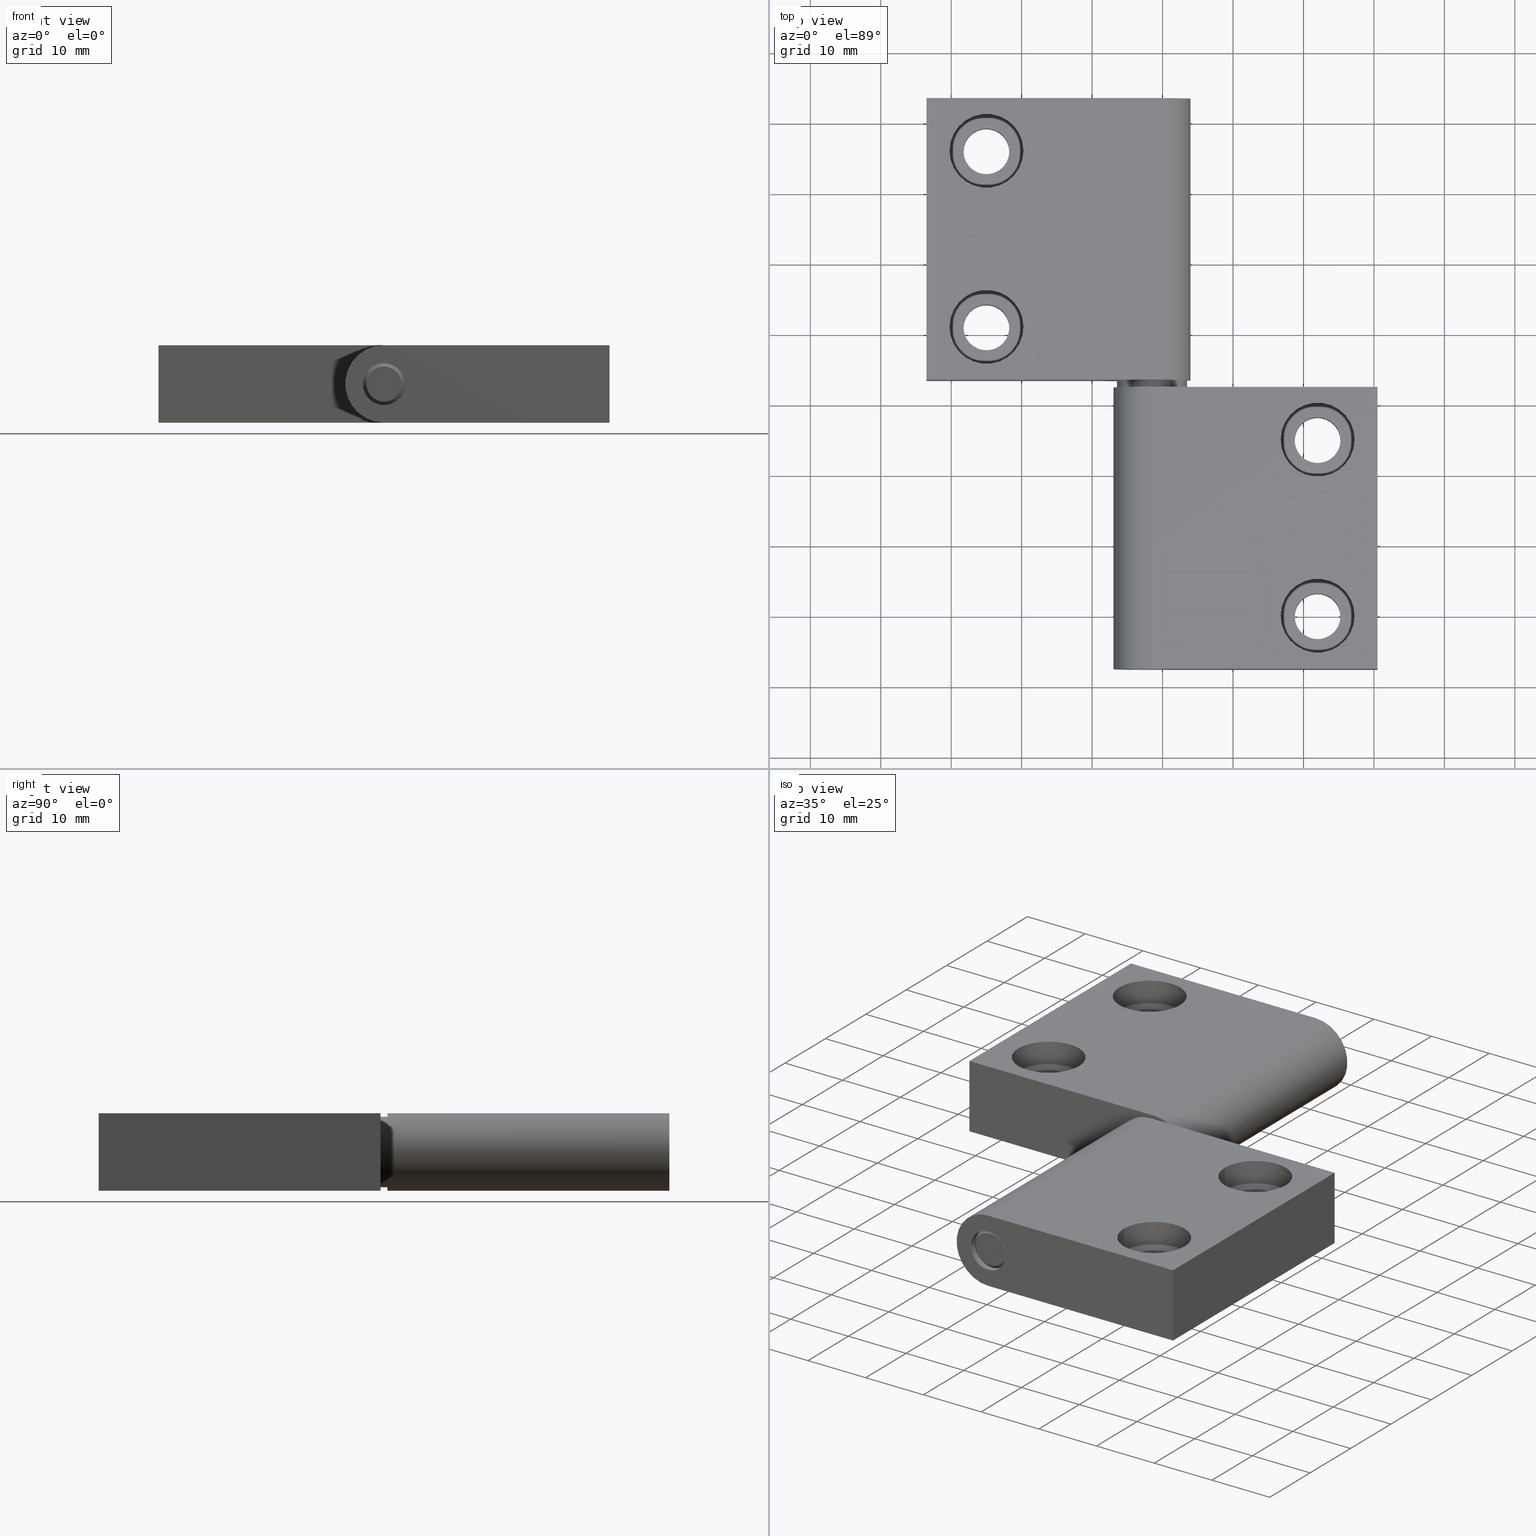
[diagram: canonical four-view strip — front | top / right | iso, engineering-drawing reading convention]
A machine part, canonical four-view strip (front | top / right | iso — engineering-drawing reading convention). The complete STEP part file that produces these views, byte-faithful:
ISO-10303-21;
HEADER;
/* Generated by software containing ST-Developer
 * from STEP Tools, Inc. (www.steptools.com) 
 */

FILE_DESCRIPTION(
/* description */ ('CERNIERA 60x80 C/P ALLUMINIO SERIE 45'),
/* implementation_level */ '2;1');

FILE_NAME(
/* name */ 'C:\\Users\\tecnico7\\Desktop\\CCRYY0000016.stp',
/* time_stamp */ '2022-07-07T15:16:16+02:00',
/* author */ ('tecnico7'),
/* organization */ (''),
/* preprocessor_version */ 'ST-DEVELOPER v18.1',
/* originating_system */ 'Autodesk Inventor 2022',
/* authorisation */ '');

FILE_SCHEMA (('AUTOMOTIVE_DESIGN { 1 0 10303 214 3 1 1 }'));
ENDSEC;

DATA;
#10=MECHANICAL_DESIGN_GEOMETRIC_PRESENTATION_REPRESENTATION('',(#35,#36,
#37),#719);
#11=ITEM_DEFINED_TRANSFORMATION($,$,#445,#490);
#12=ITEM_DEFINED_TRANSFORMATION($,$,#445,#491);
#13=ITEM_DEFINED_TRANSFORMATION($,$,#471,#492);
#14=ITEM_DEFINED_TRANSFORMATION($,$,#481,#493);
#15=(
REPRESENTATION_RELATIONSHIP($,$,#737,#736)
REPRESENTATION_RELATIONSHIP_WITH_TRANSFORMATION(#11)
SHAPE_REPRESENTATION_RELATIONSHIP()
);
#16=(
REPRESENTATION_RELATIONSHIP($,$,#737,#736)
REPRESENTATION_RELATIONSHIP_WITH_TRANSFORMATION(#12)
SHAPE_REPRESENTATION_RELATIONSHIP()
);
#17=(
REPRESENTATION_RELATIONSHIP($,$,#738,#736)
REPRESENTATION_RELATIONSHIP_WITH_TRANSFORMATION(#13)
SHAPE_REPRESENTATION_RELATIONSHIP()
);
#18=(
REPRESENTATION_RELATIONSHIP($,$,#739,#736)
REPRESENTATION_RELATIONSHIP_WITH_TRANSFORMATION(#14)
SHAPE_REPRESENTATION_RELATIONSHIP()
);
#19=CONTEXT_DEPENDENT_SHAPE_REPRESENTATION(#15,#732);
#20=CONTEXT_DEPENDENT_SHAPE_REPRESENTATION(#16,#733);
#21=CONTEXT_DEPENDENT_SHAPE_REPRESENTATION(#17,#734);
#22=CONTEXT_DEPENDENT_SHAPE_REPRESENTATION(#18,#735);
#23=NEXT_ASSEMBLY_USAGE_OCCURRENCE('440000012770.ipt:1',
'440000012770.ipt:1','440000012770.ipt:1',#741,#742,
'440000012770.ipt:1');
#24=NEXT_ASSEMBLY_USAGE_OCCURRENCE('440000012770.ipt:2',
'440000012770.ipt:2','440000012770.ipt:2',#741,#742,
'440000012770.ipt:2');
#25=NEXT_ASSEMBLY_USAGE_OCCURRENCE('F3DTM0000679.ipt:3',
'F3DTM0000679.ipt:3','F3DTM0000679.ipt:3',#741,#743,
'F3DTM0000679.ipt:3');
#26=NEXT_ASSEMBLY_USAGE_OCCURRENCE('440000000950.ipt:4',
'440000000950.ipt:4','440000000950.ipt:4',#741,#744,
'440000000950.ipt:4');
#27=CONICAL_SURFACE('',#472,2.75,0.785398163397448);
#28=CONICAL_SURFACE('',#478,2.75,0.78539816339745);
#29=SHAPE_REPRESENTATION_RELATIONSHIP('SRR','None',#737,#32);
#30=SHAPE_REPRESENTATION_RELATIONSHIP('SRR','None',#738,#33);
#31=SHAPE_REPRESENTATION_RELATIONSHIP('SRR','None',#739,#34);
#32=ADVANCED_BREP_SHAPE_REPRESENTATION('',(#38),#716);
#33=ADVANCED_BREP_SHAPE_REPRESENTATION('',(#39),#717);
#34=ADVANCED_BREP_SHAPE_REPRESENTATION('',(#40),#718);
#35=STYLED_ITEM('',(#393),#38);
#36=STYLED_ITEM('',(#394),#39);
#37=STYLED_ITEM('',(#395),#40);
#38=MANIFOLD_SOLID_BREP('None',#353);
#39=MANIFOLD_SOLID_BREP('Solido4',#354);
#40=MANIFOLD_SOLID_BREP('Solido1',#355);
#41=FACE_BOUND('',#87,.T.);
#42=FACE_BOUND('',#88,.T.);
#43=FACE_BOUND('',#90,.T.);
#44=FACE_BOUND('',#92,.T.);
#45=FACE_BOUND('',#93,.T.);
#46=FACE_BOUND('',#96,.T.);
#47=FACE_BOUND('',#99,.T.);
#48=FACE_BOUND('',#103,.T.);
#49=FACE_BOUND('',#113,.T.);
#50=FACE_BOUND('',#115,.T.);
#51=PLANE('',#452);
#52=PLANE('',#455);
#53=PLANE('',#456);
#54=PLANE('',#459);
#55=PLANE('',#460);
#56=PLANE('',#463);
#57=PLANE('',#468);
#58=PLANE('',#477);
#59=PLANE('',#480);
#60=PLANE('',#488);
#61=PLANE('',#489);
#62=FACE_OUTER_BOUND('',#84,.T.);
#63=FACE_OUTER_BOUND('',#85,.T.);
#64=FACE_OUTER_BOUND('',#86,.T.);
#65=FACE_OUTER_BOUND('',#89,.T.);
#66=FACE_OUTER_BOUND('',#91,.T.);
#67=FACE_OUTER_BOUND('',#94,.T.);
#68=FACE_OUTER_BOUND('',#95,.T.);
#69=FACE_OUTER_BOUND('',#97,.T.);
#70=FACE_OUTER_BOUND('',#98,.T.);
#71=FACE_OUTER_BOUND('',#100,.T.);
#72=FACE_OUTER_BOUND('',#101,.T.);
#73=FACE_OUTER_BOUND('',#102,.T.);
#74=FACE_OUTER_BOUND('',#104,.T.);
#75=FACE_OUTER_BOUND('',#105,.T.);
#76=FACE_OUTER_BOUND('',#106,.T.);
#77=FACE_OUTER_BOUND('',#107,.T.);
#78=FACE_OUTER_BOUND('',#108,.T.);
#79=FACE_OUTER_BOUND('',#109,.T.);
#80=FACE_OUTER_BOUND('',#110,.T.);
#81=FACE_OUTER_BOUND('',#111,.T.);
#82=FACE_OUTER_BOUND('',#112,.T.);
#83=FACE_OUTER_BOUND('',#114,.T.);
#84=EDGE_LOOP('',(#242,#243,#244,#245));
#85=EDGE_LOOP('',(#246,#247,#248,#249));
#86=EDGE_LOOP('',(#250,#251,#252,#253));
#87=EDGE_LOOP('',(#254));
#88=EDGE_LOOP('',(#255));
#89=EDGE_LOOP('',(#256,#257,#258,#259));
#90=EDGE_LOOP('',(#260));
#91=EDGE_LOOP('',(#261,#262,#263,#264));
#92=EDGE_LOOP('',(#265));
#93=EDGE_LOOP('',(#266));
#94=EDGE_LOOP('',(#267,#268,#269,#270));
#95=EDGE_LOOP('',(#271,#272,#273,#274));
#96=EDGE_LOOP('',(#275));
#97=EDGE_LOOP('',(#276,#277,#278,#279));
#98=EDGE_LOOP('',(#280));
#99=EDGE_LOOP('',(#281));
#100=EDGE_LOOP('',(#282,#283,#284,#285));
#101=EDGE_LOOP('',(#286,#287,#288,#289));
#102=EDGE_LOOP('',(#290));
#103=EDGE_LOOP('',(#291));
#104=EDGE_LOOP('',(#292,#293,#294,#295));
#105=EDGE_LOOP('',(#296,#297,#298,#299));
#106=EDGE_LOOP('',(#300,#301,#302,#303));
#107=EDGE_LOOP('',(#304));
#108=EDGE_LOOP('',(#305,#306,#307,#308));
#109=EDGE_LOOP('',(#309));
#110=EDGE_LOOP('',(#310,#311,#312,#313));
#111=EDGE_LOOP('',(#314,#315,#316,#317));
#112=EDGE_LOOP('',(#318));
#113=EDGE_LOOP('',(#319));
#114=EDGE_LOOP('',(#320));
#115=EDGE_LOOP('',(#321));
#116=LINE('',#620,#136);
#117=LINE('',#627,#137);
#118=LINE('',#630,#138);
#119=LINE('',#633,#139);
#120=LINE('',#635,#140);
#121=LINE('',#636,#141);
#122=LINE('',#643,#142);
#123=LINE('',#644,#143);
#124=LINE('',#647,#144);
#125=LINE('',#648,#145);
#126=LINE('',#654,#146);
#127=LINE('',#658,#147);
#128=LINE('',#664,#148);
#129=LINE('',#667,#149);
#130=LINE('',#673,#150);
#131=LINE('',#679,#151);
#132=LINE('',#684,#152);
#133=LINE('',#689,#153);
#134=LINE('',#696,#154);
#135=LINE('',#702,#155);
#136=VECTOR('',#502,3.);
#137=VECTOR('',#509,10.);
#138=VECTOR('',#512,10.);
#139=VECTOR('',#515,10.);
#140=VECTOR('',#516,10.);
#141=VECTOR('',#517,10.);
#142=VECTOR('',#524,10.);
#143=VECTOR('',#525,11.9999759999521);
#144=VECTOR('',#528,10.);
#145=VECTOR('',#529,10.);
#146=VECTOR('',#536,11.9999759999521);
#147=VECTOR('',#541,3.25);
#148=VECTOR('',#550,5.24998949997894);
#149=VECTOR('',#553,3.25);
#150=VECTOR('',#562,5.24998949997894);
#151=VECTOR('',#569,2.75);
#152=VECTOR('',#576,3.);
#153=VECTOR('',#583,2.75);
#154=VECTOR('',#592,2.5);
#155=VECTOR('',#599,5.);
#156=CIRCLE('',#447,3.);
#157=CIRCLE('',#448,3.);
#158=CIRCLE('',#450,5.49998799997604);
#159=CIRCLE('',#451,5.49998799997604);
#160=CIRCLE('',#453,5.24998949997894);
#161=CIRCLE('',#454,5.24998949997894);
#162=CIRCLE('',#457,3.25);
#163=CIRCLE('',#458,3.25);
#164=CIRCLE('',#462,3.25);
#165=CIRCLE('',#464,5.24998949997894);
#166=CIRCLE('',#467,3.25);
#167=CIRCLE('',#469,5.24998949997894);
#168=CIRCLE('',#473,2.5);
#169=CIRCLE('',#474,3.);
#170=CIRCLE('',#476,3.);
#171=CIRCLE('',#479,2.5);
#172=CIRCLE('',#483,2.5);
#173=CIRCLE('',#484,2.5);
#174=CIRCLE('',#486,5.);
#175=CIRCLE('',#487,5.);
#176=VERTEX_POINT('',#617);
#177=VERTEX_POINT('',#619);
#178=VERTEX_POINT('',#623);
#179=VERTEX_POINT('',#624);
#180=VERTEX_POINT('',#626);
#181=VERTEX_POINT('',#628);
#182=VERTEX_POINT('',#632);
#183=VERTEX_POINT('',#634);
#184=VERTEX_POINT('',#637);
#185=VERTEX_POINT('',#639);
#186=VERTEX_POINT('',#642);
#187=VERTEX_POINT('',#646);
#188=VERTEX_POINT('',#649);
#189=VERTEX_POINT('',#651);
#190=VERTEX_POINT('',#657);
#191=VERTEX_POINT('',#661);
#192=VERTEX_POINT('',#666);
#193=VERTEX_POINT('',#670);
#194=VERTEX_POINT('',#676);
#195=VERTEX_POINT('',#678);
#196=VERTEX_POINT('',#682);
#197=VERTEX_POINT('',#687);
#198=VERTEX_POINT('',#693);
#199=VERTEX_POINT('',#695);
#200=VERTEX_POINT('',#699);
#201=VERTEX_POINT('',#701);
#202=EDGE_CURVE('',#176,#176,#156,.T.);
#203=EDGE_CURVE('',#176,#177,#116,.T.);
#204=EDGE_CURVE('',#177,#177,#157,.T.);
#205=EDGE_CURVE('',#178,#179,#158,.T.);
#206=EDGE_CURVE('',#180,#179,#117,.T.);
#207=EDGE_CURVE('',#181,#180,#159,.T.);
#208=EDGE_CURVE('',#181,#178,#118,.T.);
#209=EDGE_CURVE('',#182,#181,#119,.T.);
#210=EDGE_CURVE('',#183,#182,#120,.T.);
#211=EDGE_CURVE('',#178,#183,#121,.T.);
#212=EDGE_CURVE('',#184,#184,#160,.T.);
#213=EDGE_CURVE('',#185,#185,#161,.T.);
#214=EDGE_CURVE('',#180,#186,#122,.T.);
#215=EDGE_CURVE('',#182,#186,#123,.T.);
#216=EDGE_CURVE('',#179,#187,#124,.T.);
#217=EDGE_CURVE('',#186,#187,#125,.T.);
#218=EDGE_CURVE('',#188,#188,#162,.T.);
#219=EDGE_CURVE('',#189,#189,#163,.T.);
#220=EDGE_CURVE('',#183,#187,#126,.T.);
#221=EDGE_CURVE('',#189,#190,#127,.T.);
#222=EDGE_CURVE('',#190,#190,#164,.T.);
#223=EDGE_CURVE('',#191,#191,#165,.T.);
#224=EDGE_CURVE('',#191,#184,#128,.T.);
#225=EDGE_CURVE('',#188,#192,#129,.T.);
#226=EDGE_CURVE('',#192,#192,#166,.T.);
#227=EDGE_CURVE('',#193,#193,#167,.T.);
#228=EDGE_CURVE('',#193,#185,#130,.T.);
#229=EDGE_CURVE('',#194,#194,#168,.T.);
#230=EDGE_CURVE('',#194,#195,#131,.T.);
#231=EDGE_CURVE('',#195,#195,#169,.T.);
#232=EDGE_CURVE('',#196,#196,#170,.T.);
#233=EDGE_CURVE('',#196,#195,#132,.T.);
#234=EDGE_CURVE('',#197,#197,#171,.T.);
#235=EDGE_CURVE('',#197,#196,#133,.T.);
#236=EDGE_CURVE('',#198,#198,#172,.T.);
#237=EDGE_CURVE('',#198,#199,#134,.T.);
#238=EDGE_CURVE('',#199,#199,#173,.T.);
#239=EDGE_CURVE('',#200,#200,#174,.T.);
#240=EDGE_CURVE('',#200,#201,#135,.T.);
#241=EDGE_CURVE('',#201,#201,#175,.T.);
#242=ORIENTED_EDGE('',*,*,#202,.F.);
#243=ORIENTED_EDGE('',*,*,#203,.T.);
#244=ORIENTED_EDGE('',*,*,#204,.F.);
#245=ORIENTED_EDGE('',*,*,#203,.F.);
#246=ORIENTED_EDGE('',*,*,#205,.T.);
#247=ORIENTED_EDGE('',*,*,#206,.F.);
#248=ORIENTED_EDGE('',*,*,#207,.F.);
#249=ORIENTED_EDGE('',*,*,#208,.T.);
#250=ORIENTED_EDGE('',*,*,#209,.F.);
#251=ORIENTED_EDGE('',*,*,#210,.F.);
#252=ORIENTED_EDGE('',*,*,#211,.F.);
#253=ORIENTED_EDGE('',*,*,#208,.F.);
#254=ORIENTED_EDGE('',*,*,#212,.F.);
#255=ORIENTED_EDGE('',*,*,#213,.F.);
#256=ORIENTED_EDGE('',*,*,#214,.T.);
#257=ORIENTED_EDGE('',*,*,#215,.F.);
#258=ORIENTED_EDGE('',*,*,#209,.T.);
#259=ORIENTED_EDGE('',*,*,#207,.T.);
#260=ORIENTED_EDGE('',*,*,#202,.T.);
#261=ORIENTED_EDGE('',*,*,#216,.T.);
#262=ORIENTED_EDGE('',*,*,#217,.F.);
#263=ORIENTED_EDGE('',*,*,#214,.F.);
#264=ORIENTED_EDGE('',*,*,#206,.T.);
#265=ORIENTED_EDGE('',*,*,#218,.F.);
#266=ORIENTED_EDGE('',*,*,#219,.F.);
#267=ORIENTED_EDGE('',*,*,#217,.T.);
#268=ORIENTED_EDGE('',*,*,#220,.F.);
#269=ORIENTED_EDGE('',*,*,#210,.T.);
#270=ORIENTED_EDGE('',*,*,#215,.T.);
#271=ORIENTED_EDGE('',*,*,#211,.T.);
#272=ORIENTED_EDGE('',*,*,#220,.T.);
#273=ORIENTED_EDGE('',*,*,#216,.F.);
#274=ORIENTED_EDGE('',*,*,#205,.F.);
#275=ORIENTED_EDGE('',*,*,#204,.T.);
#276=ORIENTED_EDGE('',*,*,#219,.T.);
#277=ORIENTED_EDGE('',*,*,#221,.T.);
#278=ORIENTED_EDGE('',*,*,#222,.T.);
#279=ORIENTED_EDGE('',*,*,#221,.F.);
#280=ORIENTED_EDGE('',*,*,#223,.T.);
#281=ORIENTED_EDGE('',*,*,#222,.F.);
#282=ORIENTED_EDGE('',*,*,#223,.F.);
#283=ORIENTED_EDGE('',*,*,#224,.T.);
#284=ORIENTED_EDGE('',*,*,#212,.T.);
#285=ORIENTED_EDGE('',*,*,#224,.F.);
#286=ORIENTED_EDGE('',*,*,#218,.T.);
#287=ORIENTED_EDGE('',*,*,#225,.T.);
#288=ORIENTED_EDGE('',*,*,#226,.T.);
#289=ORIENTED_EDGE('',*,*,#225,.F.);
#290=ORIENTED_EDGE('',*,*,#227,.T.);
#291=ORIENTED_EDGE('',*,*,#226,.F.);
#292=ORIENTED_EDGE('',*,*,#227,.F.);
#293=ORIENTED_EDGE('',*,*,#228,.T.);
#294=ORIENTED_EDGE('',*,*,#213,.T.);
#295=ORIENTED_EDGE('',*,*,#228,.F.);
#296=ORIENTED_EDGE('',*,*,#229,.T.);
#297=ORIENTED_EDGE('',*,*,#230,.T.);
#298=ORIENTED_EDGE('',*,*,#231,.T.);
#299=ORIENTED_EDGE('',*,*,#230,.F.);
#300=ORIENTED_EDGE('',*,*,#232,.F.);
#301=ORIENTED_EDGE('',*,*,#233,.T.);
#302=ORIENTED_EDGE('',*,*,#231,.F.);
#303=ORIENTED_EDGE('',*,*,#233,.F.);
#304=ORIENTED_EDGE('',*,*,#229,.F.);
#305=ORIENTED_EDGE('',*,*,#234,.T.);
#306=ORIENTED_EDGE('',*,*,#235,.T.);
#307=ORIENTED_EDGE('',*,*,#232,.T.);
#308=ORIENTED_EDGE('',*,*,#235,.F.);
#309=ORIENTED_EDGE('',*,*,#234,.F.);
#310=ORIENTED_EDGE('',*,*,#236,.T.);
#311=ORIENTED_EDGE('',*,*,#237,.T.);
#312=ORIENTED_EDGE('',*,*,#238,.F.);
#313=ORIENTED_EDGE('',*,*,#237,.F.);
#314=ORIENTED_EDGE('',*,*,#239,.F.);
#315=ORIENTED_EDGE('',*,*,#240,.T.);
#316=ORIENTED_EDGE('',*,*,#241,.F.);
#317=ORIENTED_EDGE('',*,*,#240,.F.);
#318=ORIENTED_EDGE('',*,*,#241,.T.);
#319=ORIENTED_EDGE('',*,*,#238,.T.);
#320=ORIENTED_EDGE('',*,*,#239,.T.);
#321=ORIENTED_EDGE('',*,*,#236,.F.);
#322=CYLINDRICAL_SURFACE('',#446,3.);
#323=CYLINDRICAL_SURFACE('',#449,5.49998799997604);
#324=CYLINDRICAL_SURFACE('',#461,3.25);
#325=CYLINDRICAL_SURFACE('',#465,5.24998949997894);
#326=CYLINDRICAL_SURFACE('',#466,3.25);
#327=CYLINDRICAL_SURFACE('',#470,5.24998949997894);
#328=CYLINDRICAL_SURFACE('',#475,3.);
#329=CYLINDRICAL_SURFACE('',#482,2.5);
#330=CYLINDRICAL_SURFACE('',#485,5.);
#331=ADVANCED_FACE('',(#62),#322,.F.);
#332=ADVANCED_FACE('',(#63),#323,.T.);
#333=ADVANCED_FACE('',(#64,#41,#42),#51,.T.);
#334=ADVANCED_FACE('',(#65,#43),#52,.F.);
#335=ADVANCED_FACE('',(#66,#44,#45),#53,.F.);
#336=ADVANCED_FACE('',(#67),#54,.F.);
#337=ADVANCED_FACE('',(#68,#46),#55,.T.);
#338=ADVANCED_FACE('',(#69),#324,.F.);
#339=ADVANCED_FACE('',(#70,#47),#56,.F.);
#340=ADVANCED_FACE('',(#71),#325,.F.);
#341=ADVANCED_FACE('',(#72),#326,.F.);
#342=ADVANCED_FACE('',(#73,#48),#57,.F.);
#343=ADVANCED_FACE('',(#74),#327,.F.);
#344=ADVANCED_FACE('',(#75),#27,.T.);
#345=ADVANCED_FACE('',(#76),#328,.T.);
#346=ADVANCED_FACE('',(#77),#58,.F.);
#347=ADVANCED_FACE('',(#78),#28,.T.);
#348=ADVANCED_FACE('',(#79),#59,.T.);
#349=ADVANCED_FACE('',(#80),#329,.F.);
#350=ADVANCED_FACE('',(#81),#330,.T.);
#351=ADVANCED_FACE('',(#82,#49),#60,.F.);
#352=ADVANCED_FACE('',(#83,#50),#61,.T.);
#353=CLOSED_SHELL('',(#331,#332,#333,#334,#335,#336,#337,#338,#339,#340,
#341,#342,#343));
#354=CLOSED_SHELL('',(#344,#345,#346,#347,#348));
#355=CLOSED_SHELL('',(#349,#350,#351,#352));
#356=DERIVED_UNIT_ELEMENT(#363,1.);
#357=DERIVED_UNIT_ELEMENT(#721,-3.);
#358=DERIVED_UNIT_ELEMENT(#363,1.);
#359=DERIVED_UNIT_ELEMENT(#721,-3.);
#360=DERIVED_UNIT_ELEMENT(#363,1.);
#361=DERIVED_UNIT_ELEMENT(#721,-3.);
#362=DIMENSIONAL_EXPONENTS(1.,0.,0.,0.,0.,0.,0.);
#363=(
CONVERSION_BASED_UNIT('gram',#365)
MASS_UNIT()
NAMED_UNIT(#362)
);
#364=(
MASS_UNIT()
NAMED_UNIT(*)
SI_UNIT(.KILO.,.GRAM.)
);
#365=MASS_MEASURE_WITH_UNIT(MASS_MEASURE(0.001),#364);
#366=DERIVED_UNIT((#356,#357));
#367=DERIVED_UNIT((#358,#359));
#368=DERIVED_UNIT((#360,#361));
#369=MEASURE_REPRESENTATION_ITEM('density measure',
POSITIVE_RATIO_MEASURE(2.7),#366);
#370=MEASURE_REPRESENTATION_ITEM('density measure',
POSITIVE_RATIO_MEASURE(8.08),#367);
#371=MEASURE_REPRESENTATION_ITEM('density measure',
POSITIVE_RATIO_MEASURE(7.85),#368);
#372=PROPERTY_DEFINITION_REPRESENTATION(#387,#378);
#373=PROPERTY_DEFINITION_REPRESENTATION(#388,#379);
#374=PROPERTY_DEFINITION_REPRESENTATION(#389,#380);
#375=PROPERTY_DEFINITION_REPRESENTATION(#390,#381);
#376=PROPERTY_DEFINITION_REPRESENTATION(#391,#382);
#377=PROPERTY_DEFINITION_REPRESENTATION(#392,#383);
#378=REPRESENTATION('material name',(#384),#716);
#379=REPRESENTATION('density',(#369),#716);
#380=REPRESENTATION('material name',(#385),#717);
#381=REPRESENTATION('density',(#370),#717);
#382=REPRESENTATION('material name',(#386),#718);
#383=REPRESENTATION('density',(#371),#718);
#384=DESCRIPTIVE_REPRESENTATION_ITEM('Alluminio 6060','Alluminio 6060');
#385=DESCRIPTIVE_REPRESENTATION_ITEM('Acciaio Inox AISI304',
'Acciaio Inox AISI304');
#386=DESCRIPTIVE_REPRESENTATION_ITEM('Acciaio generico (Ferro)',
'Acciaio generico (Ferro)');
#387=PROPERTY_DEFINITION('material property','material name',#742);
#388=PROPERTY_DEFINITION('material property','density of part',#742);
#389=PROPERTY_DEFINITION('material property','material name',#743);
#390=PROPERTY_DEFINITION('material property','density of part',#743);
#391=PROPERTY_DEFINITION('material property','material name',#744);
#392=PROPERTY_DEFINITION('material property','density of part',#744);
#393=PRESENTATION_STYLE_ASSIGNMENT((#396));
#394=PRESENTATION_STYLE_ASSIGNMENT((#397));
#395=PRESENTATION_STYLE_ASSIGNMENT((#398));
#396=SURFACE_STYLE_USAGE(.BOTH.,#405);
#397=SURFACE_STYLE_USAGE(.BOTH.,#406);
#398=SURFACE_STYLE_USAGE(.BOTH.,#407);
#399=SURFACE_STYLE_RENDERING_WITH_PROPERTIES($,#417,(#402));
#400=SURFACE_STYLE_RENDERING_WITH_PROPERTIES($,#418,(#403));
#401=SURFACE_STYLE_RENDERING_WITH_PROPERTIES($,#419,(#404));
#402=SURFACE_STYLE_TRANSPARENT(0.);
#403=SURFACE_STYLE_TRANSPARENT(0.);
#404=SURFACE_STYLE_TRANSPARENT(0.);
#405=SURFACE_SIDE_STYLE('',(#408,#399));
#406=SURFACE_SIDE_STYLE('',(#409,#400));
#407=SURFACE_SIDE_STYLE('',(#410,#401));
#408=SURFACE_STYLE_FILL_AREA(#411);
#409=SURFACE_STYLE_FILL_AREA(#412);
#410=SURFACE_STYLE_FILL_AREA(#413);
#411=FILL_AREA_STYLE('',(#414));
#412=FILL_AREA_STYLE('',(#415));
#413=FILL_AREA_STYLE('',(#416));
#414=FILL_AREA_STYLE_COLOUR('',#417);
#415=FILL_AREA_STYLE_COLOUR('',#418);
#416=FILL_AREA_STYLE_COLOUR('',#419);
#417=COLOUR_RGB('',0.956862745098039,0.956862745098039,0.956862745098039);
#418=COLOUR_RGB('',0.745098039215686,0.737254901960784,0.729411764705882);
#419=COLOUR_RGB('',0.63921568627451,0.63921568627451,0.662745098039216);
#420=DATE_TIME_ROLE('creation_date');
#421=DATE_TIME_ROLE('creation_date');
#422=DATE_TIME_ROLE('creation_date');
#423=DATE_TIME_ROLE('creation_date');
#424=APPLIED_DATE_AND_TIME_ASSIGNMENT(#428,#420,(#741));
#425=APPLIED_DATE_AND_TIME_ASSIGNMENT(#429,#421,(#742));
#426=APPLIED_DATE_AND_TIME_ASSIGNMENT(#430,#422,(#743));
#427=APPLIED_DATE_AND_TIME_ASSIGNMENT(#431,#423,(#744));
#428=DATE_AND_TIME(#432,#436);
#429=DATE_AND_TIME(#433,#437);
#430=DATE_AND_TIME(#434,#438);
#431=DATE_AND_TIME(#435,#439);
#432=CALENDAR_DATE(2013,13,3);
#433=CALENDAR_DATE(2013,13,3);
#434=CALENDAR_DATE(2013,13,3);
#435=CALENDAR_DATE(2016,29,3);
#436=LOCAL_TIME(0,0,0.,#440);
#437=LOCAL_TIME(0,0,0.,#441);
#438=LOCAL_TIME(0,0,0.,#442);
#439=LOCAL_TIME(0,0,0.,#443);
#440=COORDINATED_UNIVERSAL_TIME_OFFSET(0,0,.BEHIND.);
#441=COORDINATED_UNIVERSAL_TIME_OFFSET(0,0,.BEHIND.);
#442=COORDINATED_UNIVERSAL_TIME_OFFSET(0,0,.BEHIND.);
#443=COORDINATED_UNIVERSAL_TIME_OFFSET(0,0,.BEHIND.);
#444=AXIS2_PLACEMENT_3D('placement',#614,#494,#495);
#445=AXIS2_PLACEMENT_3D('placement',#615,#496,#497);
#446=AXIS2_PLACEMENT_3D('',#616,#498,#499);
#447=AXIS2_PLACEMENT_3D('',#618,#500,#501);
#448=AXIS2_PLACEMENT_3D('',#621,#503,#504);
#449=AXIS2_PLACEMENT_3D('',#622,#505,#506);
#450=AXIS2_PLACEMENT_3D('',#625,#507,#508);
#451=AXIS2_PLACEMENT_3D('',#629,#510,#511);
#452=AXIS2_PLACEMENT_3D('',#631,#513,#514);
#453=AXIS2_PLACEMENT_3D('',#638,#518,#519);
#454=AXIS2_PLACEMENT_3D('',#640,#520,#521);
#455=AXIS2_PLACEMENT_3D('',#641,#522,#523);
#456=AXIS2_PLACEMENT_3D('',#645,#526,#527);
#457=AXIS2_PLACEMENT_3D('',#650,#530,#531);
#458=AXIS2_PLACEMENT_3D('',#652,#532,#533);
#459=AXIS2_PLACEMENT_3D('',#653,#534,#535);
#460=AXIS2_PLACEMENT_3D('',#655,#537,#538);
#461=AXIS2_PLACEMENT_3D('',#656,#539,#540);
#462=AXIS2_PLACEMENT_3D('',#659,#542,#543);
#463=AXIS2_PLACEMENT_3D('',#660,#544,#545);
#464=AXIS2_PLACEMENT_3D('',#662,#546,#547);
#465=AXIS2_PLACEMENT_3D('',#663,#548,#549);
#466=AXIS2_PLACEMENT_3D('',#665,#551,#552);
#467=AXIS2_PLACEMENT_3D('',#668,#554,#555);
#468=AXIS2_PLACEMENT_3D('',#669,#556,#557);
#469=AXIS2_PLACEMENT_3D('',#671,#558,#559);
#470=AXIS2_PLACEMENT_3D('',#672,#560,#561);
#471=AXIS2_PLACEMENT_3D('placement',#674,#563,#564);
#472=AXIS2_PLACEMENT_3D('',#675,#565,#566);
#473=AXIS2_PLACEMENT_3D('',#677,#567,#568);
#474=AXIS2_PLACEMENT_3D('',#680,#570,#571);
#475=AXIS2_PLACEMENT_3D('',#681,#572,#573);
#476=AXIS2_PLACEMENT_3D('',#683,#574,#575);
#477=AXIS2_PLACEMENT_3D('',#685,#577,#578);
#478=AXIS2_PLACEMENT_3D('',#686,#579,#580);
#479=AXIS2_PLACEMENT_3D('',#688,#581,#582);
#480=AXIS2_PLACEMENT_3D('',#690,#584,#585);
#481=AXIS2_PLACEMENT_3D('placement',#691,#586,#587);
#482=AXIS2_PLACEMENT_3D('',#692,#588,#589);
#483=AXIS2_PLACEMENT_3D('',#694,#590,#591);
#484=AXIS2_PLACEMENT_3D('',#697,#593,#594);
#485=AXIS2_PLACEMENT_3D('',#698,#595,#596);
#486=AXIS2_PLACEMENT_3D('',#700,#597,#598);
#487=AXIS2_PLACEMENT_3D('',#703,#600,#601);
#488=AXIS2_PLACEMENT_3D('',#704,#602,#603);
#489=AXIS2_PLACEMENT_3D('',#705,#604,#605);
#490=AXIS2_PLACEMENT_3D('',#706,#606,#607);
#491=AXIS2_PLACEMENT_3D('',#707,#608,#609);
#492=AXIS2_PLACEMENT_3D('',#708,#610,#611);
#493=AXIS2_PLACEMENT_3D('',#709,#612,#613);
#494=DIRECTION('axis',(0.,0.,1.));
#495=DIRECTION('refdir',(1.,0.,0.));
#496=DIRECTION('axis',(0.,0.,1.));
#497=DIRECTION('refdir',(1.,0.,0.));
#498=DIRECTION('center_axis',(0.,-1.,0.));
#499=DIRECTION('ref_axis',(1.,0.,0.));
#500=DIRECTION('center_axis',(0.,1.,0.));
#501=DIRECTION('ref_axis',(1.,0.,0.));
#502=DIRECTION('',(0.,1.,0.));
#503=DIRECTION('center_axis',(0.,-1.,0.));
#504=DIRECTION('ref_axis',(1.,0.,0.));
#505=DIRECTION('center_axis',(0.,1.,0.));
#506=DIRECTION('ref_axis',(0.,0.,1.));
#507=DIRECTION('center_axis',(0.,-1.,0.));
#508=DIRECTION('ref_axis',(0.,0.,1.));
#509=DIRECTION('',(0.,1.,0.));
#510=DIRECTION('center_axis',(0.,-1.,0.));
#511=DIRECTION('ref_axis',(0.,0.,1.));
#512=DIRECTION('',(0.,1.,0.));
#513=DIRECTION('center_axis',(0.,0.,1.));
#514=DIRECTION('ref_axis',(1.,0.,0.));
#515=DIRECTION('',(-1.,0.,0.));
#516=DIRECTION('',(0.,-1.,0.));
#517=DIRECTION('',(1.,0.,0.));
#518=DIRECTION('center_axis',(0.,0.,1.));
#519=DIRECTION('ref_axis',(1.,0.,0.));
#520=DIRECTION('center_axis',(0.,0.,1.));
#521=DIRECTION('ref_axis',(1.,0.,0.));
#522=DIRECTION('center_axis',(0.,1.,0.));
#523=DIRECTION('ref_axis',(0.,0.,1.));
#524=DIRECTION('',(1.,0.,0.));
#525=DIRECTION('',(0.,0.,-1.));
#526=DIRECTION('center_axis',(0.,0.,1.));
#527=DIRECTION('ref_axis',(1.,0.,0.));
#528=DIRECTION('',(1.,0.,0.));
#529=DIRECTION('',(0.,1.,0.));
#530=DIRECTION('center_axis',(0.,0.,-1.));
#531=DIRECTION('ref_axis',(1.,0.,0.));
#532=DIRECTION('center_axis',(0.,0.,-1.));
#533=DIRECTION('ref_axis',(1.,0.,0.));
#534=DIRECTION('center_axis',(-1.,0.,0.));
#535=DIRECTION('ref_axis',(0.,0.,1.));
#536=DIRECTION('',(0.,0.,-1.));
#537=DIRECTION('center_axis',(0.,1.,0.));
#538=DIRECTION('ref_axis',(0.,0.,1.));
#539=DIRECTION('center_axis',(0.,0.,1.));
#540=DIRECTION('ref_axis',(1.,0.,0.));
#541=DIRECTION('',(0.,0.,1.));
#542=DIRECTION('center_axis',(0.,0.,1.));
#543=DIRECTION('ref_axis',(1.,0.,0.));
#544=DIRECTION('center_axis',(0.,0.,-1.));
#545=DIRECTION('ref_axis',(-1.,0.,0.));
#546=DIRECTION('center_axis',(0.,0.,1.));
#547=DIRECTION('ref_axis',(1.,0.,0.));
#548=DIRECTION('center_axis',(0.,0.,1.));
#549=DIRECTION('ref_axis',(1.,0.,0.));
#550=DIRECTION('',(0.,0.,1.));
#551=DIRECTION('center_axis',(0.,0.,1.));
#552=DIRECTION('ref_axis',(1.,0.,0.));
#553=DIRECTION('',(0.,0.,1.));
#554=DIRECTION('center_axis',(0.,0.,1.));
#555=DIRECTION('ref_axis',(1.,0.,0.));
#556=DIRECTION('center_axis',(0.,0.,-1.));
#557=DIRECTION('ref_axis',(-1.,0.,0.));
#558=DIRECTION('center_axis',(0.,0.,1.));
#559=DIRECTION('ref_axis',(1.,0.,0.));
#560=DIRECTION('center_axis',(0.,0.,1.));
#561=DIRECTION('ref_axis',(1.,0.,0.));
#562=DIRECTION('',(0.,0.,1.));
#563=DIRECTION('axis',(0.,0.,1.));
#564=DIRECTION('refdir',(1.,0.,0.));
#565=DIRECTION('center_axis',(0.,0.,1.));
#566=DIRECTION('ref_axis',(-1.,0.,0.));
#567=DIRECTION('center_axis',(0.,0.,1.));
#568=DIRECTION('ref_axis',(-1.,0.,0.));
#569=DIRECTION('',(0.707106781186547,-8.65956056235493E-17,0.707106781186548));
#570=DIRECTION('center_axis',(0.,0.,-1.));
#571=DIRECTION('ref_axis',(-1.,0.,0.));
#572=DIRECTION('center_axis',(0.,0.,1.));
#573=DIRECTION('ref_axis',(-1.,0.,0.));
#574=DIRECTION('center_axis',(0.,0.,1.));
#575=DIRECTION('ref_axis',(-1.,0.,0.));
#576=DIRECTION('',(0.,0.,-1.));
#577=DIRECTION('center_axis',(0.,0.,1.));
#578=DIRECTION('ref_axis',(1.,0.,0.));
#579=DIRECTION('center_axis',(0.,0.,-1.));
#580=DIRECTION('ref_axis',(-1.,0.,0.));
#581=DIRECTION('center_axis',(0.,0.,-1.));
#582=DIRECTION('ref_axis',(-1.,0.,0.));
#583=DIRECTION('',(0.707106781186549,8.65956056235495E-17,-0.707106781186546));
#584=DIRECTION('center_axis',(0.,0.,1.));
#585=DIRECTION('ref_axis',(1.,0.,0.));
#586=DIRECTION('axis',(0.,0.,1.));
#587=DIRECTION('refdir',(1.,0.,0.));
#588=DIRECTION('center_axis',(0.,0.,1.));
#589=DIRECTION('ref_axis',(1.,0.,0.));
#590=DIRECTION('center_axis',(0.,0.,1.));
#591=DIRECTION('ref_axis',(1.,0.,0.));
#592=DIRECTION('',(0.,0.,-1.));
#593=DIRECTION('center_axis',(0.,0.,1.));
#594=DIRECTION('ref_axis',(1.,0.,0.));
#595=DIRECTION('center_axis',(0.,0.,1.));
#596=DIRECTION('ref_axis',(-1.,0.,0.));
#597=DIRECTION('center_axis',(0.,0.,1.));
#598=DIRECTION('ref_axis',(-1.,0.,0.));
#599=DIRECTION('',(0.,0.,-1.));
#600=DIRECTION('center_axis',(0.,0.,-1.));
#601=DIRECTION('ref_axis',(-1.,0.,0.));
#602=DIRECTION('center_axis',(0.,0.,1.));
#603=DIRECTION('ref_axis',(1.,0.,0.));
#604=DIRECTION('center_axis',(0.,0.,1.));
#605=DIRECTION('ref_axis',(1.,0.,0.));
#606=DIRECTION('',(0.,0.,1.));
#607=DIRECTION('',(1.,0.,0.));
#608=DIRECTION('',(8.67788232312236E-17,8.01396681290611E-31,1.));
#609=DIRECTION('',(-1.,2.12816264797199E-15,8.67788232312236E-17));
#610=DIRECTION('',(2.04428083573653E-15,1.,0.));
#611=DIRECTION('',(0.860954984635397,-1.76003377552198E-15,-0.508681152030879));
#612=DIRECTION('',(-7.00250525366255E-16,-1.,-1.92951493227607E-31));
#613=DIRECTION('',(2.10617544833737E-15,-1.28189897098415E-30,-1.));
#614=CARTESIAN_POINT('',(0.,0.,0.));
#615=CARTESIAN_POINT('',(0.,0.,0.));
#616=CARTESIAN_POINT('Origin',(8.49989699988602,88.087610701824,5.99998799997605));
#617=CARTESIAN_POINT('',(5.49989699988602,32.4998549997101,5.99998799997605));
#618=CARTESIAN_POINT('Origin',(8.49989699988602,32.4998549997101,5.99998799997605));
#619=CARTESIAN_POINT('',(5.49989699988602,72.4998549997101,5.99998799997605));
#620=CARTESIAN_POINT('',(5.49989699988602,88.087610701824,5.99998799997605));
#621=CARTESIAN_POINT('Origin',(8.49989699988602,72.4998549997101,5.99998799997605));
#622=CARTESIAN_POINT('Origin',(8.49989699988602,32.4998549997101,5.99998799997605));
#623=CARTESIAN_POINT('',(8.49989699988602,72.4998549997101,11.4999759999521));
#624=CARTESIAN_POINT('',(8.49989699988602,72.4998549997101,0.500000000000009));
#625=CARTESIAN_POINT('Origin',(8.49989699988602,72.4998549997101,5.99998799997605));
#626=CARTESIAN_POINT('',(8.49989699988602,32.4998549997101,0.500000000000009));
#627=CARTESIAN_POINT('',(8.49989699988602,32.4998549997101,0.500000000000009));
#628=CARTESIAN_POINT('',(8.49989699988602,32.4998549997101,11.4999759999521));
#629=CARTESIAN_POINT('Origin',(8.49989699988602,32.4998549997101,5.99998799997605));
#630=CARTESIAN_POINT('',(8.49989699988602,32.4998549997101,11.4999759999521));
#631=CARTESIAN_POINT('Origin',(25.74993699992,52.4998549997101,11.4999759999521));
#632=CARTESIAN_POINT('',(40.499896999886,32.4998549997101,11.4999759999521));
#633=CARTESIAN_POINT('',(13.999896999886,32.4998549997101,11.4999759999521));
#634=CARTESIAN_POINT('',(40.499896999886,72.4998549997101,11.4999759999521));
#635=CARTESIAN_POINT('',(40.499896999886,62.4998549997101,11.4999759999521));
#636=CARTESIAN_POINT('',(13.6249652722918,72.4998549997101,11.4999759999521));
#637=CARTESIAN_POINT('',(26.7499214999352,64.99986999974,11.4999759999521));
#638=CARTESIAN_POINT('Origin',(31.9999109999142,64.99986999974,11.4999759999521));
#639=CARTESIAN_POINT('',(26.7499214999352,39.9999199998401,11.4999759999521));
#640=CARTESIAN_POINT('Origin',(31.9999109999142,39.9999199998401,11.4999759999521));
#641=CARTESIAN_POINT('Origin',(1.49999354466354,32.4998549997101,13.1999793947969));
#642=CARTESIAN_POINT('',(40.499896999886,32.4998549997101,0.500000000000004));
#643=CARTESIAN_POINT('',(13.249966072143,32.4998549997101,0.500000000000005));
#644=CARTESIAN_POINT('',(40.499896999886,32.4998549997101,11.9999759999521));
#645=CARTESIAN_POINT('Origin',(24.9999385996224,52.4998549997101,0.500000000000004));
#646=CARTESIAN_POINT('',(40.499896999886,72.4998549997101,0.500000000000004));
#647=CARTESIAN_POINT('',(11.249899999892,72.4998549997101,0.500000000000009));
#648=CARTESIAN_POINT('',(40.499896999886,62.4998549997101,0.500000000000005));
#649=CARTESIAN_POINT('',(28.7499109999142,39.9999199998401,0.500000000000004));
#650=CARTESIAN_POINT('Origin',(31.9999109999142,39.9999199998401,0.500000000000004));
#651=CARTESIAN_POINT('',(28.7499109999142,64.99986999974,0.500000000000004));
#652=CARTESIAN_POINT('Origin',(31.9999109999142,64.99986999974,0.500000000000005));
#653=CARTESIAN_POINT('Origin',(40.499896999886,72.4998549997101,11.9999759999521));
#654=CARTESIAN_POINT('',(40.499896999886,72.4998549997101,11.9999759999521));
#655=CARTESIAN_POINT('Origin',(1.49999354466354,72.4998549997101,13.1999793947969));
#656=CARTESIAN_POINT('Origin',(31.9999109999142,64.99986999974,-1.20015827739166));
#657=CARTESIAN_POINT('',(28.7499109999142,64.99986999974,7.99998399996798));
#658=CARTESIAN_POINT('',(28.7499109999142,64.99986999974,-1.20015827739166));
#659=CARTESIAN_POINT('Origin',(31.9999109999142,64.99986999974,7.99998399996798));
#660=CARTESIAN_POINT('Origin',(22.9999319999563,54.4998909997821,7.99998399996798));
#661=CARTESIAN_POINT('',(26.7499214999352,64.99986999974,7.99998399996798));
#662=CARTESIAN_POINT('Origin',(31.9999109999142,64.99986999974,7.99998399996798));
#663=CARTESIAN_POINT('Origin',(31.9999109999142,64.99986999974,7.99998399996798));
#664=CARTESIAN_POINT('',(26.7499214999352,64.99986999974,7.99998399996798));
#665=CARTESIAN_POINT('Origin',(31.9999109999142,39.9999199998401,-1.20015827739166));
#666=CARTESIAN_POINT('',(28.7499109999142,39.9999199998401,7.99998399996798));
#667=CARTESIAN_POINT('',(28.7499109999142,39.9999199998401,-1.20015827739166));
#668=CARTESIAN_POINT('Origin',(31.9999109999142,39.9999199998401,7.99998399996798));
#669=CARTESIAN_POINT('Origin',(22.9999319999563,29.4999409998823,7.99998399996798));
#670=CARTESIAN_POINT('',(26.7499214999352,39.9999199998401,7.99998399996798));
#671=CARTESIAN_POINT('Origin',(31.9999109999142,39.9999199998401,7.99998399996798));
#672=CARTESIAN_POINT('Origin',(31.9999109999142,39.9999199998401,7.99998399996798));
#673=CARTESIAN_POINT('',(26.7499214999352,39.9999199998401,7.99998399996798));
#674=CARTESIAN_POINT('',(0.,0.,0.));
#675=CARTESIAN_POINT('Origin',(0.,0.,0.25));
#676=CARTESIAN_POINT('',(2.5,3.06161699786838E-16,0.));
#677=CARTESIAN_POINT('Origin',(0.,0.,0.));
#678=CARTESIAN_POINT('',(3.,-3.67394039744206E-16,0.5));
#679=CARTESIAN_POINT('',(2.75,-3.36777869765522E-16,0.25));
#680=CARTESIAN_POINT('Origin',(0.,0.,0.5));
#681=CARTESIAN_POINT('Origin',(0.,0.,0.));
#682=CARTESIAN_POINT('',(3.,3.67394039744206E-16,79.5));
#683=CARTESIAN_POINT('Origin',(0.,0.,79.5));
#684=CARTESIAN_POINT('',(3.,3.67394039744206E-16,0.));
#685=CARTESIAN_POINT('Origin',(-1.84813812287733E-16,-7.70988211545247E-17,
0.));
#686=CARTESIAN_POINT('Origin',(0.,0.,79.75));
#687=CARTESIAN_POINT('',(2.5,-3.06161699786838E-16,80.));
#688=CARTESIAN_POINT('Origin',(0.,0.,80.));
#689=CARTESIAN_POINT('',(2.75,3.36777869765522E-16,79.75));
#690=CARTESIAN_POINT('Origin',(-1.84813812287733E-16,-7.70988211545247E-17,
80.));
#691=CARTESIAN_POINT('',(0.,0.,0.));
#692=CARTESIAN_POINT('Origin',(0.,0.,0.));
#693=CARTESIAN_POINT('',(-2.5,-3.06161699786838E-16,1.));
#694=CARTESIAN_POINT('Origin',(0.,0.,1.));
#695=CARTESIAN_POINT('',(-2.5,3.06161699786838E-16,0.));
#696=CARTESIAN_POINT('',(-2.5,-3.06161699786838E-16,0.));
#697=CARTESIAN_POINT('Origin',(0.,0.,0.));
#698=CARTESIAN_POINT('Origin',(0.,0.,0.));
#699=CARTESIAN_POINT('',(5.,6.12323399573676E-16,1.));
#700=CARTESIAN_POINT('Origin',(0.,0.,1.));
#701=CARTESIAN_POINT('',(5.,6.12323399573676E-16,0.));
#702=CARTESIAN_POINT('',(5.,6.12323399573676E-16,0.));
#703=CARTESIAN_POINT('Origin',(0.,0.,0.));
#704=CARTESIAN_POINT('Origin',(-2.36064120735333E-16,9.25185853854297E-17,
0.));
#705=CARTESIAN_POINT('Origin',(-2.36064120735333E-16,9.25185853854297E-17,
1.));
#706=CARTESIAN_POINT('',(0.,0.,0.));
#707=CARTESIAN_POINT('',(16.9997939997722,145.99970999942,4.60923930091673E-13));
#708=CARTESIAN_POINT('',(8.49989699988602,32.9998549997101,5.99998799997605));
#709=CARTESIAN_POINT('',(8.49989699988608,73.4998549997101,5.99998799997622));
#710=UNCERTAINTY_MEASURE_WITH_UNIT(LENGTH_MEASURE(0.01),#720,
'DISTANCE_ACCURACY_VALUE',
'Maximum model space distance between geometric entities at asserted c
onnectivities');
#711=UNCERTAINTY_MEASURE_WITH_UNIT(LENGTH_MEASURE(0.01),#720,
'DISTANCE_ACCURACY_VALUE',
'Maximum model space distance between geometric entities at asserted c
onnectivities');
#712=UNCERTAINTY_MEASURE_WITH_UNIT(LENGTH_MEASURE(0.01),#720,
'DISTANCE_ACCURACY_VALUE',
'Maximum model space distance between geometric entities at asserted c
onnectivities');
#713=UNCERTAINTY_MEASURE_WITH_UNIT(LENGTH_MEASURE(0.01),#720,
'DISTANCE_ACCURACY_VALUE',
'Maximum model space distance between geometric entities at asserted c
onnectivities');
#714=UNCERTAINTY_MEASURE_WITH_UNIT(LENGTH_MEASURE(0.01),#720,
'DISTANCE_ACCURACY_VALUE',
'Maximum model space distance between geometric entities at asserted c
onnectivities');
#715=(
GEOMETRIC_REPRESENTATION_CONTEXT(3)
GLOBAL_UNCERTAINTY_ASSIGNED_CONTEXT((#710))
GLOBAL_UNIT_ASSIGNED_CONTEXT((#720,#722,#723))
REPRESENTATION_CONTEXT('','3D')
);
#716=(
GEOMETRIC_REPRESENTATION_CONTEXT(3)
GLOBAL_UNCERTAINTY_ASSIGNED_CONTEXT((#711))
GLOBAL_UNIT_ASSIGNED_CONTEXT((#720,#722,#723))
REPRESENTATION_CONTEXT('','3D')
);
#717=(
GEOMETRIC_REPRESENTATION_CONTEXT(3)
GLOBAL_UNCERTAINTY_ASSIGNED_CONTEXT((#712))
GLOBAL_UNIT_ASSIGNED_CONTEXT((#720,#722,#723))
REPRESENTATION_CONTEXT('','3D')
);
#718=(
GEOMETRIC_REPRESENTATION_CONTEXT(3)
GLOBAL_UNCERTAINTY_ASSIGNED_CONTEXT((#713))
GLOBAL_UNIT_ASSIGNED_CONTEXT((#720,#722,#723))
REPRESENTATION_CONTEXT('','3D')
);
#719=(
GEOMETRIC_REPRESENTATION_CONTEXT(3)
GLOBAL_UNCERTAINTY_ASSIGNED_CONTEXT((#714))
GLOBAL_UNIT_ASSIGNED_CONTEXT((#720,#722,#723))
REPRESENTATION_CONTEXT('','3D')
);
#720=(
LENGTH_UNIT()
NAMED_UNIT(*)
SI_UNIT(.MILLI.,.METRE.)
);
#721=(
LENGTH_UNIT()
NAMED_UNIT(*)
SI_UNIT(.CENTI.,.METRE.)
);
#722=(
NAMED_UNIT(*)
PLANE_ANGLE_UNIT()
SI_UNIT($,.RADIAN.)
);
#723=(
NAMED_UNIT(*)
SI_UNIT($,.STERADIAN.)
SOLID_ANGLE_UNIT()
);
#724=SHAPE_DEFINITION_REPRESENTATION(#728,#736);
#725=SHAPE_DEFINITION_REPRESENTATION(#729,#737);
#726=SHAPE_DEFINITION_REPRESENTATION(#730,#738);
#727=SHAPE_DEFINITION_REPRESENTATION(#731,#739);
#728=PRODUCT_DEFINITION_SHAPE('',$,#741);
#729=PRODUCT_DEFINITION_SHAPE('',$,#742);
#730=PRODUCT_DEFINITION_SHAPE('',$,#743);
#731=PRODUCT_DEFINITION_SHAPE('',$,#744);
#732=PRODUCT_DEFINITION_SHAPE($,$,#23);
#733=PRODUCT_DEFINITION_SHAPE($,$,#24);
#734=PRODUCT_DEFINITION_SHAPE($,$,#25);
#735=PRODUCT_DEFINITION_SHAPE($,$,#26);
#736=SHAPE_REPRESENTATION('',(#444,#490,#491,#492,#493),#715);
#737=SHAPE_REPRESENTATION('',(#445),#716);
#738=SHAPE_REPRESENTATION('',(#471),#717);
#739=SHAPE_REPRESENTATION('',(#481),#718);
#740=PRODUCT_DEFINITION_CONTEXT('part definition',#754,'design');
#741=PRODUCT_DEFINITION('CCRYY0000016','CCRYY0000016',#745,#740);
#742=PRODUCT_DEFINITION('440000012770','440000012770',#746,#740);
#743=PRODUCT_DEFINITION('F3DTM0000679','F3DTM0000679',#747,#740);
#744=PRODUCT_DEFINITION('440000000950','440000000950',#748,#740);
#745=PRODUCT_DEFINITION_FORMATION('A',$,#756);
#746=PRODUCT_DEFINITION_FORMATION('A',$,#757);
#747=PRODUCT_DEFINITION_FORMATION('B',$,#758);
#748=PRODUCT_DEFINITION_FORMATION('B',$,#759);
#749=PRODUCT_RELATED_PRODUCT_CATEGORY('CCRYY0000016','CCRYY0000016',(#756));
#750=PRODUCT_RELATED_PRODUCT_CATEGORY('440000012770','440000012770',(#757));
#751=PRODUCT_RELATED_PRODUCT_CATEGORY('F3DTM0000679','F3DTM0000679',(#758));
#752=PRODUCT_RELATED_PRODUCT_CATEGORY('440000000950','440000000950',(#759));
#753=APPLICATION_PROTOCOL_DEFINITION('international standard',
'automotive_design',2009,#754);
#754=APPLICATION_CONTEXT(
'Core Data for Automotive Mechanical Design Process');
#755=PRODUCT_CONTEXT('part definition',#754,'mechanical');
#756=PRODUCT('CCRYY0000016','CCRYY0000016',
'CERNIERA 60x80 C/P ALLUMINIO SERIE 45',(#755));
#757=PRODUCT('440000012770','440000012770','PARTICOLARE ',(#755));
#758=PRODUCT('F3DTM0000679','F3DTM0000679',
'CERNIERA 50X80 C/P ALLUMINIO SERIE 45',(#755));
#759=PRODUCT('440000000950','440000000950','-',(#755));
ENDSEC;
END-ISO-10303-21;
